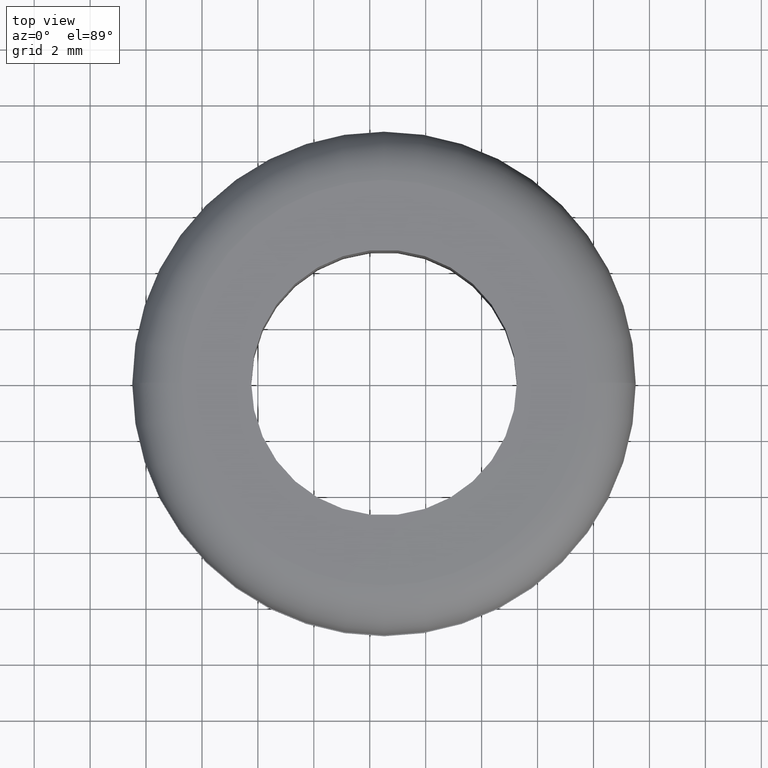
[diagram: clean part render]
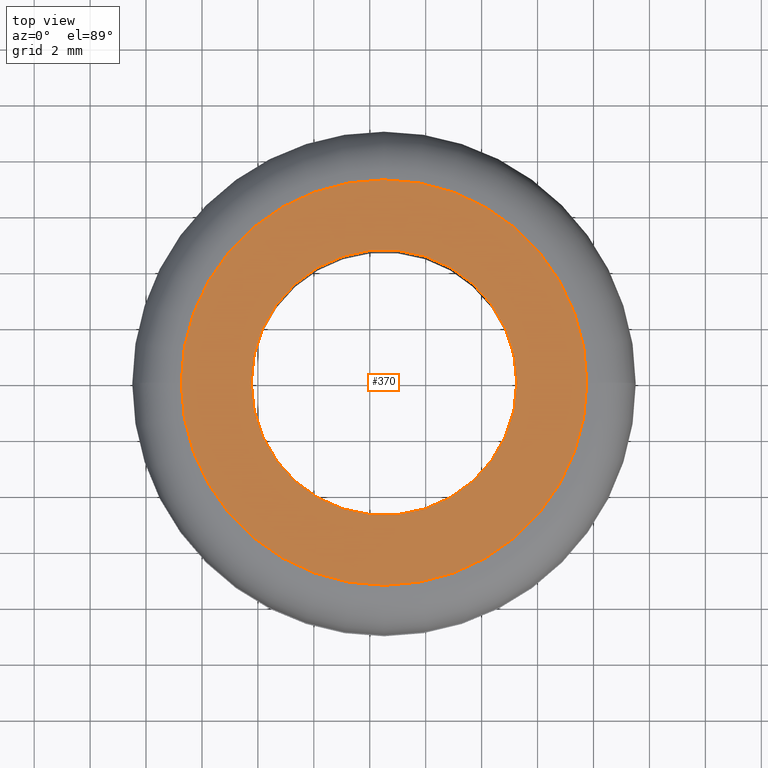
[diagram: same view with one face highlighted and labeled with its STEP entity id]
A machine part, top view. The second image highlights one B-rep face of the part: STEP entity #370.
In plain terms, the highlighted planar face has unit normal (0, 0, -1).
Its self-contained STEP definition (entity closure, byte-faithful):
#3 = AXIS2_PLACEMENT_3D ( 'NONE', #138, #358, #392 ) ;
#12 = CARTESIAN_POINT ( 'NONE',  ( 105.2589284890372000, 5.817072295976868000E-016, 135.6288681965060100 ) ) ;
#28 = CIRCLE ( 'NONE', #221, 7.250000000022002800 ) ;
#34 = VERTEX_POINT ( 'NONE', #435 ) ;
#46 = VERTEX_POINT ( 'NONE', #366 ) ;
#47 = DIRECTION ( 'NONE',  ( -1.000000000000000000, 0.0000000000000000000, 0.0000000000000000000 ) ) ;
#62 = AXIS2_PLACEMENT_3D ( 'NONE', #449, #196, #411 ) ;
#87 = VERTEX_POINT ( 'NONE', #272 ) ;
#91 = CARTESIAN_POINT ( 'NONE',  ( 100.5089284890152000, 0.0000000000000000000, 135.6288681965060100 ) ) ;
#107 = EDGE_LOOP ( 'NONE', ( #442, #368 ) ) ;
#109 = DIRECTION ( 'NONE',  ( -1.000000000000000000, 0.0000000000000000000, 0.0000000000000000000 ) ) ;
#111 = EDGE_LOOP ( 'NONE', ( #309, #364 ) ) ;
#138 = CARTESIAN_POINT ( 'NONE',  ( 100.5089284890152000, 0.0000000000000000000, 135.6288681965060100 ) ) ;
#140 = CARTESIAN_POINT ( 'NONE',  ( 100.5089284890152000, 0.0000000000000000000, 135.6288681965060100 ) ) ;
#141 = FACE_BOUND ( 'NONE', #107, .T. ) ;
#165 = AXIS2_PLACEMENT_3D ( 'NONE', #140, #361, #109 ) ;
#174 = DIRECTION ( 'NONE',  ( 0.0000000000000000000, 0.0000000000000000000, -1.000000000000000000 ) ) ;
#196 = DIRECTION ( 'NONE',  ( 0.0000000000000000000, 0.0000000000000000000, -1.000000000000000000 ) ) ;
#221 = AXIS2_PLACEMENT_3D ( 'NONE', #91, #306, #47 ) ;
#238 = EDGE_CURVE ( 'NONE', #87, #34, #28, .T. ) ;
#239 = FACE_OUTER_BOUND ( 'NONE', #111, .T. ) ;
#259 = VERTEX_POINT ( 'NONE', #12 ) ;
#266 = CIRCLE ( 'NONE', #165, 4.750000000022000200 ) ;
#272 = CARTESIAN_POINT ( 'NONE',  ( 107.7589284890372000, 9.950255243099186200E-016, 135.6288681965060100 ) ) ;
#276 = CIRCLE ( 'NONE', #62, 4.750000000022000200 ) ;
#285 = EDGE_CURVE ( 'NONE', #259, #46, #276, .T. ) ;
#306 = DIRECTION ( 'NONE',  ( 0.0000000000000000000, 0.0000000000000000000, -1.000000000000000000 ) ) ;
#308 = EDGE_CURVE ( 'NONE', #46, #259, #266, .T. ) ;
#309 = ORIENTED_EDGE ( 'NONE', *, *, #467, .F. ) ;
#311 = CIRCLE ( 'NONE', #3, 7.250000000022002800 ) ;
#332 = AXIS2_PLACEMENT_3D ( 'NONE', #354, #174, #352 ) ;
#352 = DIRECTION ( 'NONE',  ( -1.000000000000000000, 0.0000000000000000000, 0.0000000000000000000 ) ) ;
#354 = CARTESIAN_POINT ( 'NONE',  ( 105.2589284890371900, 0.0000000000000000000, 135.6288681965060100 ) ) ;
#358 = DIRECTION ( 'NONE',  ( 0.0000000000000000000, 0.0000000000000000000, -1.000000000000000000 ) ) ;
#361 = DIRECTION ( 'NONE',  ( 0.0000000000000000000, 0.0000000000000000000, -1.000000000000000000 ) ) ;
#364 = ORIENTED_EDGE ( 'NONE', *, *, #238, .F. ) ;
#366 = CARTESIAN_POINT ( 'NONE',  ( 95.75892848899320600, 0.0000000000000000000, 135.6288681965060100 ) ) ;
#368 = ORIENTED_EDGE ( 'NONE', *, *, #285, .T. ) ;
#370 = ADVANCED_FACE ( 'NONE', ( #239, #141 ), #464, .F. ) ;
#392 = DIRECTION ( 'NONE',  ( -1.000000000000000000, 0.0000000000000000000, 0.0000000000000000000 ) ) ;
#411 = DIRECTION ( 'NONE',  ( -1.000000000000000000, 0.0000000000000000000, 0.0000000000000000000 ) ) ;
#435 = CARTESIAN_POINT ( 'NONE',  ( 93.25892848899319200, 0.0000000000000000000, 135.6288681965060100 ) ) ;
#442 = ORIENTED_EDGE ( 'NONE', *, *, #308, .T. ) ;
#449 = CARTESIAN_POINT ( 'NONE',  ( 100.5089284890152000, 0.0000000000000000000, 135.6288681965060100 ) ) ;
#464 = PLANE ( 'NONE',  #332 ) ;
#467 = EDGE_CURVE ( 'NONE', #34, #87, #311, .T. ) ;